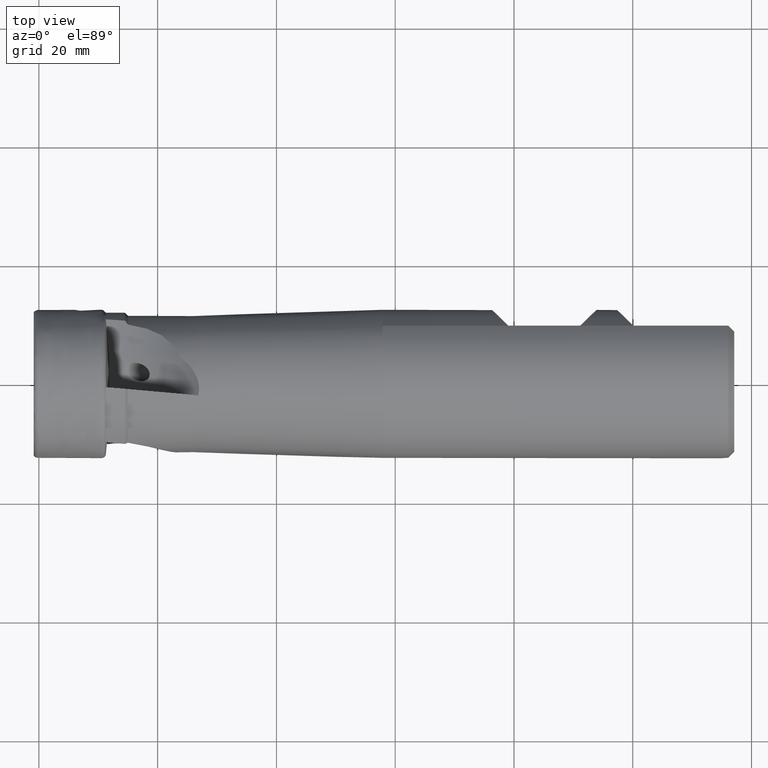
[diagram: clean part render]
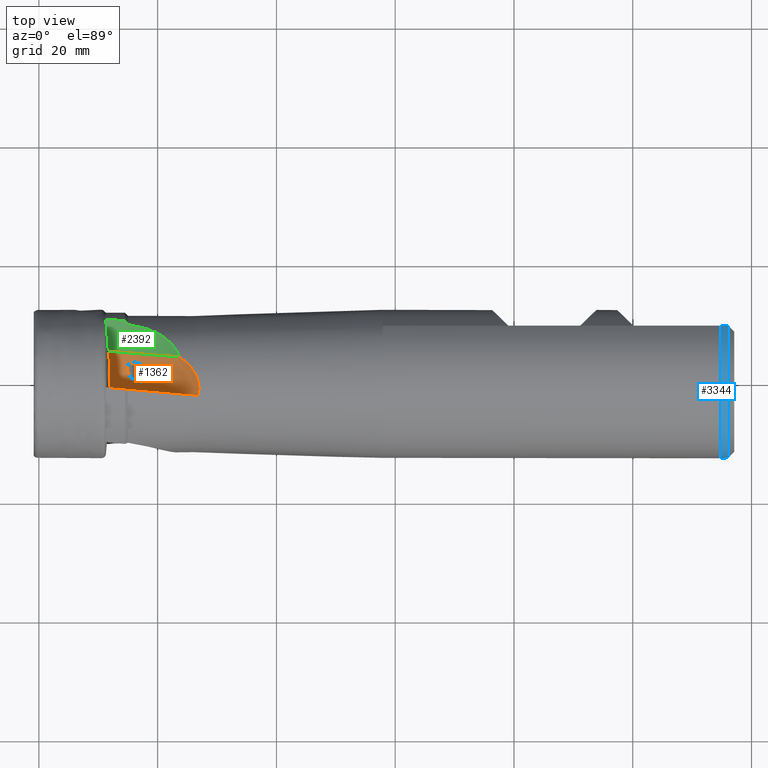
[diagram: same view with three faces highlighted in distinct colors, each labeled with its STEP entity id]
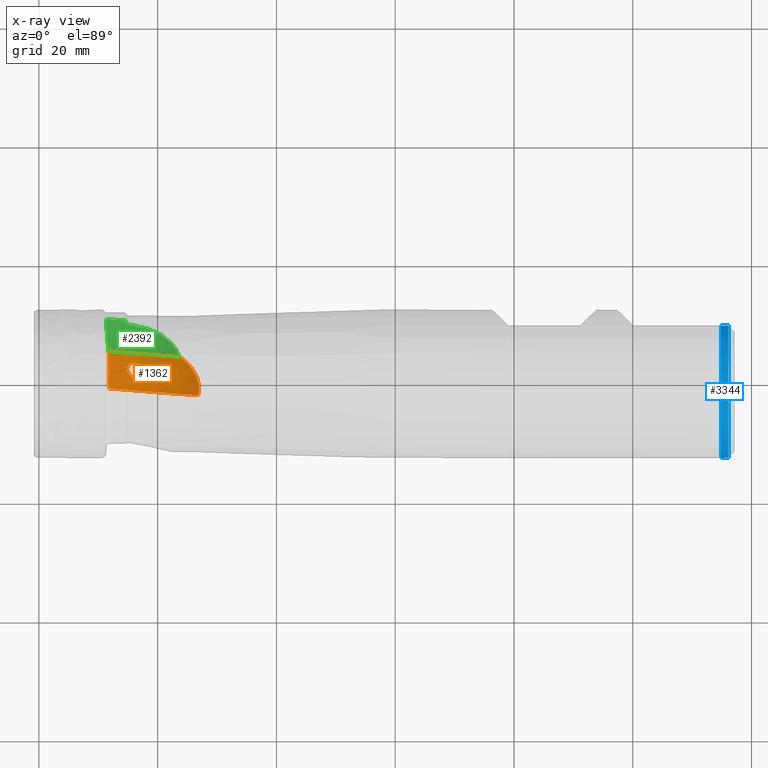
[diagram: x-ray of the same camera — body ghosted, the three highlighted faces saturated]
A machine part, top view with three faces highlighted in distinct colors.
The next image is the same camera in x-ray (body ghosted, the three faces saturated) — at least one of them is partly hidden behind the body in this view.
Their STEP definitions:

[orange] entity #1362 — the highlighted toroidal blend (fillet) surface has major radius 13.8 mm and minor (blend) radius 10 mm.
#21 = B_SPLINE_CURVE_WITH_KNOTS ( 'NONE', 3,
 ( #3822, #531, #1857, #4170, #2171, #225, #2507, #546, #2835, #866, #3168, #1197, #3502, #1532, #3838, #1869, #4182, #2189, #240, #2515, #558, #2852, #877, #3178, #1214, #3514, #1543, #3851, #1885, #4192, #2200, #256, #2529, #569, #2865, #893, #3192, #1224, #3527, #1556, #3862, #1896, #4209, #2208, #266, #2547, #586, #2876 ),
 .UNSPECIFIED., .T., .F.,
 ( 4, 2, 2, 2, 2, 2, 2, 2, 2, 2, 2, 2, 2, 2, 2, 2, 2, 2, 2, 2, 2, 2, 2, 4 ),
 ( 0.0000000000000000000, 0.0003532979001865562900, 0.0007065958003731125900, 0.001413191600746225800, 0.001766489500932782700, 0.002119787401119339700, 0.002826383201492457300, 0.003532979001865574900, 0.004239574802238692400, 0.004946170602611810900, 0.005299468502798374000, 0.005652766402984936300, 0.006006064303171500300, 0.006359362203358063400, 0.006712660103544628200, 0.007065958003731189600, 0.007419255903917752700, 0.007772553804104315000, 0.008479149604477440400, 0.009185745404850566600, 0.009892341205223691100, 0.01024563910541025300, 0.01059893700559681600, 0.01130553280596994000 ),
 .UNSPECIFIED. ) ;
#28 = CARTESIAN_POINT ( 'NONE',  ( 11.82924765536060000, 4.523120304491492000, 4.661295391707221300 ) ) ;
#41 = ORIENTED_EDGE ( 'NONE', *, *, #2557, .F. ) ;
#110 = CARTESIAN_POINT ( 'NONE',  ( 26.03133763206778900, 2.016279198989966200, 11.32236347895680200 ) ) ;
#148 = ORIENTED_EDGE ( 'NONE', *, *, #922, .F. ) ;
#150 = CARTESIAN_POINT ( 'NONE',  ( 24.53556153810972200, 3.725401575837079100, 10.88144590765194200 ) ) ;
#225 = CARTESIAN_POINT ( 'NONE',  ( 14.87427449894969900, 2.160588012613263100, 4.263736590284940700 ) ) ;
#228 = CARTESIAN_POINT ( 'NONE',  ( 26.22889793334643500, 1.715927084992845600, 11.38214155241293600 ) ) ;
#240 = CARTESIAN_POINT ( 'NONE',  ( 17.78217312964309100, 0.4377879011183786200, 4.876161949182781000 ) ) ;
#256 = CARTESIAN_POINT ( 'NONE',  ( 18.38660059041991700, 2.299493224496201200, 5.645421597407618300 ) ) ;
#266 = CARTESIAN_POINT ( 'NONE',  ( 15.56752422735448200, 3.431486689703986000, 5.005312610016495100 ) ) ;
#309 = DIRECTION ( 'NONE',  ( 0.9961946980917455500, -0.08715574274765848500, 0.0000000000000000000 ) ) ;
#320 = CARTESIAN_POINT ( 'NONE',  ( 25.99999999998509600, 2.064150782802217400, 11.31323479584230000 ) ) ;
#348 = CARTESIAN_POINT ( 'NONE',  ( 11.84043659206503200, 3.547439054832927800, 4.122655532505699900 ) ) ;
#418 = CARTESIAN_POINT ( 'NONE',  ( 9.339066207848093300, 5.650643800664974000, 26.80000000000000400 ) ) ;
#531 = CARTESIAN_POINT ( 'NONE',  ( 14.92867913769609900, 2.919945102674158300, 4.565428856767600700 ) ) ;
#546 = CARTESIAN_POINT ( 'NONE',  ( 15.13006518463329200, 1.629809231511827800, 4.183821912959309900 ) ) ;
#558 = CARTESIAN_POINT ( 'NONE',  ( 18.17478893274217500, 0.6134766486015449400, 5.075756237137493800 ) ) ;
#569 = CARTESIAN_POINT ( 'NONE',  ( 18.16365400656960500, 2.575016313938568200, 5.652121409465172200 ) ) ;
#586 = CARTESIAN_POINT ( 'NONE',  ( 15.09727780971131100, 3.188759131120605200, 4.733415971428156500 ) ) ;
#651 = CARTESIAN_POINT ( 'NONE',  ( 25.99999999998509600, 2.064150782802217400, 11.31323479584230000 ) ) ;
#654 = CARTESIAN_POINT ( 'NONE',  ( 11.74053314913045300, 5.331210420225042800, 5.203079365959758300 ) ) ;
#667 = DIRECTION ( 'NONE',  ( -0.08715574274765848500, -0.9961946980917455500, -0.0000000000000000000 ) ) ;
#669 = CARTESIAN_POINT ( 'NONE',  ( 11.85673849686388500, 2.237713936012555700, 3.631950500097380600 ) ) ;
#716 = CARTESIAN_POINT ( 'NONE',  ( 23.67047079365448800, 4.396808367003469400, 10.62629174189410500 ) ) ;
#748 = EDGE_CURVE ( 'NONE', #2328, #1654, #1667, .T. ) ;
#771 = B_SPLINE_CURVE_WITH_KNOTS ( 'NONE', 3,
 ( #3467, #2138, #3149, #1183 ),
 .UNSPECIFIED., .F., .F.,
 ( 4, 4 ),
 ( 3.706163050300629600E-007, 5.831083184353483200E-005 ),
 .UNSPECIFIED. ) ;
#787 = CARTESIAN_POINT ( 'NONE',  ( 24.11135611908353500, 4.074778222339828600, 10.75549461350568100 ) ) ;
#839 = VERTEX_POINT ( 'NONE', #2276 ) ;
#866 = CARTESIAN_POINT ( 'NONE',  ( 15.34207165158435700, 1.347699963080670500, 4.176540905911792800 ) ) ;
#868 = CARTESIAN_POINT ( 'NONE',  ( 26.68401629255890800, 0.7411293195197136100, 11.50189015463468900 ) ) ;
#877 = CARTESIAN_POINT ( 'NONE',  ( 18.42213236462421800, 0.8201078520237876600, 5.226631836701229400 ) ) ;
#893 = CARTESIAN_POINT ( 'NONE',  ( 17.81582021679709300, 2.893281354739829100, 5.631317454378155700 ) ) ;
#922 = EDGE_CURVE ( 'NONE', #1654, #2282, #1911, .T. ) ;
#948 = VERTEX_POINT ( 'NONE', #110 ) ;
#987 = CARTESIAN_POINT ( 'NONE',  ( 11.85305515062325400, 1.431328774175382800, 3.420393967480538600 ) ) ;
#1170 = CARTESIAN_POINT ( 'NONE',  ( 24.74270176988464300, 3.540239142398695200, 10.94339150152294100 ) ) ;
#1183 = CARTESIAN_POINT ( 'NONE',  ( 26.03133763206778900, 2.016279198989966200, 11.32236347895680200 ) ) ;
#1192 = DIRECTION ( 'NONE',  ( 0.9961946980917454300, -0.08715574274765847100, 0.0000000000000000000 ) ) ;
#1197 = CARTESIAN_POINT ( 'NONE',  ( 15.67555698028658100, 1.014919161043154500, 4.205661065213463200 ) ) ;
#1199 = CARTESIAN_POINT ( 'NONE',  ( 26.93891274825394400, -0.3152119877750572100, 11.53003882657656500 ) ) ;
#1214 = CARTESIAN_POINT ( 'NONE',  ( 18.59503626299693100, 1.097421471124008900, 5.368440190432783900 ) ) ;
#1224 = CARTESIAN_POINT ( 'NONE',  ( 17.21187593570095900, 3.244630720454459100, 5.536465420429015800 ) ) ;
#1247 = ORIENTED_EDGE ( 'NONE', *, *, #3162, .T. ) ;
#1324 = CARTESIAN_POINT ( 'NONE',  ( 11.82408927831467700, 0.6078125657805665300, 3.273460958097250500 ) ) ;
#1336 = B_SPLINE_CURVE_WITH_KNOTS ( 'NONE', 3,
 ( #3934, #654, #1635, #3956, #1978, #28, #2292, #348, #2632, #669, #2955, #987, #3287, #1324, #3632, #1650, #3972, #1999 ),
 .UNSPECIFIED., .F., .F.,
 ( 4, 2, 2, 2, 2, 2, 2, 2, 4 ),
 ( 0.0000000000000000000, 0.0004175039403962976200, 0.0008350078807925952400, 0.001670015761585186800, 0.003340031523170370100, 0.004175039403962960500, 0.005010047284755551700, 0.005845055165548142100, 0.006680063046340732400 ),
 .UNSPECIFIED. ) ;
#1362 = ADVANCED_FACE ( 'NONE', ( #1418, #3154 ), #4062, .F. ) ;
#1418 = FACE_BOUND ( 'NONE', #2973, .T. ) ;
#1532 = CARTESIAN_POINT ( 'NONE',  ( 16.26466604591707100, 0.6429248171179805500, 4.331809067995156900 ) ) ;
#1535 = CARTESIAN_POINT ( 'NONE',  ( 26.95550980234951100, -1.400111561184544900, 11.44995595290762400 ) ) ;
#1539 = EDGE_CURVE ( 'NONE', #3680, #839, #2086, .T. ) ;
#1543 = CARTESIAN_POINT ( 'NONE',  ( 18.66664165479616600, 1.424734704574025700, 5.487362233321836600 ) ) ;
#1556 = CARTESIAN_POINT ( 'NONE',  ( 16.55592843947475500, 3.455466428108180800, 5.377282660565577500 ) ) ;
#1605 = AXIS2_PLACEMENT_3D ( 'NONE', #418, #667, #1192 ) ;
#1635 = CARTESIAN_POINT ( 'NONE',  ( 11.76484150641106100, 5.218156958260240500, 5.122750800287237300 ) ) ;
#1650 = CARTESIAN_POINT ( 'NONE',  ( 11.80365453807018400, -0.2295843676476766200, 3.197449378165965900 ) ) ;
#1654 = VERTEX_POINT ( 'NONE', #2159 ) ;
#1667 = CIRCLE ( 'NONE', #1605, 21.64601809837321500 ) ;
#1771 = DIRECTION ( 'NONE',  ( -0.08715574274765848500, -0.9961946980917455500, -0.0000000000000000000 ) ) ;
#1857 = CARTESIAN_POINT ( 'NONE',  ( 14.88990898774564900, 2.821842620666055600, 4.513044283360343000 ) ) ;
#1869 = CARTESIAN_POINT ( 'NONE',  ( 16.90871465407975900, 0.4298604480666958200, 4.529183595739447700 ) ) ;
#1873 = CARTESIAN_POINT ( 'NONE',  ( 26.81784455521648500, -2.102234149780903400, 11.33180065524483000 ) ) ;
#1885 = CARTESIAN_POINT ( 'NONE',  ( 18.63143452672155900, 1.768629695307095900, 5.574011592856300500 ) ) ;
#1896 = CARTESIAN_POINT ( 'NONE',  ( 15.99782842665548400, 3.497839579307596500, 5.190060806297695200 ) ) ;
#1911 = B_SPLINE_CURVE_WITH_KNOTS ( 'NONE', 3,
 ( #716, #2359, #787, #150, #1170, #3633, #3782, #651 ),
 .UNSPECIFIED., .F., .F.,
 ( 4, 2, 2, 4 ),
 ( 0.002604637633750802200, 0.003444825465903872700, 0.004285013298056944400, 0.005965388962363087100 ),
 .UNSPECIFIED. ) ;
#1978 = CARTESIAN_POINT ( 'NONE',  ( 11.80973215259393100, 4.873945453693418800, 4.887619016210456900 ) ) ;
#1999 = CARTESIAN_POINT ( 'NONE',  ( 11.81839032143651000, -0.7899519452492265200, 3.193821182209712000 ) ) ;
#2009 = ORIENTED_EDGE ( 'NONE', *, *, #748, .F. ) ;
#2086 = CIRCLE ( 'NONE', #2258, 23.80000000000000400 ) ;
#2138 = CARTESIAN_POINT ( 'NONE',  ( 26.01042221813241900, 2.048154931560337100, 11.31615331114376500 ) ) ;
#2159 = CARTESIAN_POINT ( 'NONE',  ( 23.67047079365448800, 4.396808367003469400, 10.62629174189410500 ) ) ;
#2171 = CARTESIAN_POINT ( 'NONE',  ( 14.84145875832074200, 2.497803185128664600, 4.373254824388189900 ) ) ;
#2186 = ORIENTED_EDGE ( 'NONE', *, *, #4200, .F. ) ;
#2188 = ORIENTED_EDGE ( 'NONE', *, *, #2574, .F. ) ;
#2189 = CARTESIAN_POINT ( 'NONE',  ( 17.56348018911183200, 0.4009762279496014700, 4.780489199595661100 ) ) ;
#2200 = CARTESIAN_POINT ( 'NONE',  ( 18.50708616646279500, 2.096552555871654000, 5.626705786916199200 ) ) ;
#2208 = CARTESIAN_POINT ( 'NONE',  ( 15.67354207320235600, 3.458398681665263200, 5.055189394702909000 ) ) ;
#2252 = DIRECTION ( 'NONE',  ( -0.08715574274765848500, -0.9961946980917455500, -0.0000000000000000000 ) ) ;
#2258 = AXIS2_PLACEMENT_3D ( 'NONE', #4248, #2252, #309 ) ;
#2276 = CARTESIAN_POINT ( 'NONE',  ( 26.81784455521648500, -2.102234149780903400, 11.33180065524483000 ) ) ;
#2282 = VERTEX_POINT ( 'NONE', #320 ) ;
#2292 = CARTESIAN_POINT ( 'NONE',  ( 11.82944757292716000, 4.283713732638729800, 4.518614416670155600 ) ) ;
#2328 = VERTEX_POINT ( 'NONE', #2657 ) ;
#2359 = CARTESIAN_POINT ( 'NONE',  ( 23.89343761720274300, 4.239863521270923900, 10.69123033266845400 ) ) ;
#2507 = CARTESIAN_POINT ( 'NONE',  ( 14.95649468799112500, 1.936084620224347100, 4.217791206986078100 ) ) ;
#2510 = CARTESIAN_POINT ( 'NONE',  ( 26.03133763206778900, 2.016279198989966200, 11.32236347895680200 ) ) ;
#2515 = CARTESIAN_POINT ( 'NONE',  ( 18.07956437957215500, 0.5605454796197267800, 5.024714213853777700 ) ) ;
#2529 = CARTESIAN_POINT ( 'NONE',  ( 18.31617640109443500, 2.396061923000422300, 5.650194736587536700 ) ) ;
#2547 = CARTESIAN_POINT ( 'NONE',  ( 15.27127009918959800, 3.315805981110662600, 4.849398298737718900 ) ) ;
#2557 = EDGE_CURVE ( 'NONE', #2282, #948, #771, .T. ) ;
#2574 = EDGE_CURVE ( 'NONE', #3096, #3096, #21, .T. ) ;
#2632 = CARTESIAN_POINT ( 'NONE',  ( 11.84756740148387500, 3.029494043577080300, 3.898307065138464400 ) ) ;
#2657 = CARTESIAN_POINT ( 'NONE',  ( 11.71453628735177200, 5.442817098163375900, 5.285724518863978500 ) ) ;
#2684 = B_SPLINE_CURVE_WITH_KNOTS ( 'NONE', 3,
 ( #2510, #228, #2839, #868, #3173, #1199, #3505, #1535, #3844, #1873 ),
 .UNSPECIFIED., .F., .F.,
 ( 4, 2, 2, 2, 4 ),
 ( 3.652314020040032400E-007, 0.001082741655488306600, 0.002165118079574609200, 0.003247494503660912100, 0.004329870927747213700 ),
 .UNSPECIFIED. ) ;
#2757 = CARTESIAN_POINT ( 'NONE',  ( 8.798700602812610700, -0.5257633275038486900, 26.80000000000000400 ) ) ;
#2835 = CARTESIAN_POINT ( 'NONE',  ( 15.19604978116876700, 1.532826102570659800, 4.178167355467306400 ) ) ;
#2839 = CARTESIAN_POINT ( 'NONE',  ( 26.40067571412452500, 1.401815319146835400, 11.43123124368323200 ) ) ;
#2852 = CARTESIAN_POINT ( 'NONE',  ( 18.34494501994014800, 0.7423029213229314100, 5.176023271775505000 ) ) ;
#2865 = CARTESIAN_POINT ( 'NONE',  ( 18.08089015179712100, 2.658469088708463400, 5.649360761308385800 ) ) ;
#2876 = CARTESIAN_POINT ( 'NONE',  ( 14.98487869503450300, 3.009549778822973000, 4.621424561654451100 ) ) ;
#2955 = CARTESIAN_POINT ( 'NONE',  ( 11.85879941382088300, 1.970789113716817900, 3.554358670302576200 ) ) ;
#2973 = EDGE_LOOP ( 'NONE', ( #2188 ) ) ;
#3096 = VERTEX_POINT ( 'NONE', #3662 ) ;
#3149 = CARTESIAN_POINT ( 'NONE',  ( 26.02086790984493100, 2.032196380641569700, 11.31919553570073100 ) ) ;
#3154 = FACE_OUTER_BOUND ( 'NONE', #3329, .T. ) ;
#3162 = EDGE_CURVE ( 'NONE', #2328, #3680, #1336, .T. ) ;
#3168 = CARTESIAN_POINT ( 'NONE',  ( 15.42255053323048800, 1.259357337229223500, 4.180693709485230300 ) ) ;
#3173 = CARTESIAN_POINT ( 'NONE',  ( 26.79581964166751000, 0.3906007775187372300, 11.52324425281843600 ) ) ;
#3178 = CARTESIAN_POINT ( 'NONE',  ( 18.54667033828948800, 0.9968307548708468200, 5.322411907226912900 ) ) ;
#3192 = CARTESIAN_POINT ( 'NONE',  ( 17.62056784026654900, 3.025856580993107900, 5.606598411004476600 ) ) ;
#3287 = CARTESIAN_POINT ( 'NONE',  ( 11.84497975711512800, 1.158804314932632600, 3.363989085335983300 ) ) ;
#3329 = EDGE_LOOP ( 'NONE', ( #2009, #1247, #3865, #2186, #41, #148 ) ) ;
#3467 = CARTESIAN_POINT ( 'NONE',  ( 25.99999999998509600, 2.064150782802217400, 11.31323479584230000 ) ) ;
#3502 = CARTESIAN_POINT ( 'NONE',  ( 15.86316583743814600, 0.8747750747819006400, 4.238888650028365600 ) ) ;
#3505 = CARTESIAN_POINT ( 'NONE',  ( 26.97216874718812100, -0.6731824621138929900, 11.51610495036164700 ) ) ;
#3514 = CARTESIAN_POINT ( 'NONE',  ( 18.65484116774274200, 1.311089985772663700, 5.450760878307656700 ) ) ;
#3527 = CARTESIAN_POINT ( 'NONE',  ( 16.99391466928562600, 3.332626467346961000, 5.490076386084855800 ) ) ;
#3632 = CARTESIAN_POINT ( 'NONE',  ( 11.81191817258921300, 0.3287002301178071900, 3.239444269241106100 ) ) ;
#3633 = CARTESIAN_POINT ( 'NONE',  ( 25.33506842495617300, 2.958285902526909300, 11.12038612112044700 ) ) ;
#3662 = CARTESIAN_POINT ( 'NONE',  ( 14.98487869503450500, 3.009549778822972600, 4.621424561654454700 ) ) ;
#3680 = VERTEX_POINT ( 'NONE', #4203 ) ;
#3782 = CARTESIAN_POINT ( 'NONE',  ( 25.69283398032547800, 2.535584203933977800, 11.22721963900794900 ) ) ;
#3822 = CARTESIAN_POINT ( 'NONE',  ( 14.98487869503450300, 3.009549778822973000, 4.621424561654451100 ) ) ;
#3838 = CARTESIAN_POINT ( 'NONE',  ( 16.47356171638916300, 0.5536565106190678400, 4.390198956363375900 ) ) ;
#3844 = CARTESIAN_POINT ( 'NONE',  ( 26.90567676715687300, -1.756010072248108700, 11.39883167102845000 ) ) ;
#3851 = CARTESIAN_POINT ( 'NONE',  ( 18.65480729089153700, 1.653859523557830400, 5.549039796069651600 ) ) ;
#3862 = CARTESIAN_POINT ( 'NONE',  ( 16.33262546080403900, 3.492169192133123700, 5.310370586297892700 ) ) ;
#3865 = ORIENTED_EDGE ( 'NONE', *, *, #1539, .T. ) ;
#3903 = AXIS2_PLACEMENT_3D ( 'NONE', #2757, #1771, #4093 ) ;
#3934 = CARTESIAN_POINT ( 'NONE',  ( 11.71453628735177200, 5.442817098163375900, 5.285724518863978500 ) ) ;
#3956 = CARTESIAN_POINT ( 'NONE',  ( 11.79945675326912800, 4.989524421436158300, 4.965022306204137000 ) ) ;
#3972 = CARTESIAN_POINT ( 'NONE',  ( 11.80870863783551300, -0.5094334413728830400, 3.189443282803892100 ) ) ;
#4062 = TOROIDAL_SURFACE ( 'NONE', #3903, 13.80000000000000200, 10.00000000000000200 ) ;
#4093 = DIRECTION ( 'NONE',  ( 0.9961946980917455500, -0.08715574274765848500, 0.0000000000000000000 ) ) ;
#4170 = CARTESIAN_POINT ( 'NONE',  ( 14.84577822160361600, 2.608903919257963300, 4.416043494214005000 ) ) ;
#4182 = CARTESIAN_POINT ( 'NONE',  ( 17.12846522474308500, 0.3974826768704524100, 4.607776440232902000 ) ) ;
#4192 = CARTESIAN_POINT ( 'NONE',  ( 18.55710373260086900, 1.990811883489334500, 5.612929927026246300 ) ) ;
#4200 = EDGE_CURVE ( 'NONE', #948, #839, #2684, .T. ) ;
#4203 = CARTESIAN_POINT ( 'NONE',  ( 11.81839032143651000, -0.7899519452492265200, 3.193821182209712000 ) ) ;
#4209 = CARTESIAN_POINT ( 'NONE',  ( 15.88817397253968300, 3.491341056414957800, 5.147274153167057200 ) ) ;
#4248 = CARTESIAN_POINT ( 'NONE',  ( 8.798700602812610700, -0.5257633275038469100, 26.80000000000000400 ) ) ;

[blue] entity #3344 — the highlighted conical surface has half-angle 4.574 deg.
#78 = ORIENTED_EDGE ( 'NONE', *, *, #1489, .T. ) ;
#181 = ORIENTED_EDGE ( 'NONE', *, *, #1344, .T. ) ;
#250 = CARTESIAN_POINT ( 'NONE',  ( 115.6833756513085400, 9.700000000000004600, 7.778138934283050300 ) ) ;
#272 = CARTESIAN_POINT ( 'NONE',  ( 114.8499999999999800, 9.699999999999994000, -7.884161337770820800 ) ) ;
#484 = VERTEX_POINT ( 'NONE', #549 ) ;
#490 = AXIS2_PLACEMENT_3D ( 'NONE', #593, #3572, #1259 ) ;
#549 = CARTESIAN_POINT ( 'NONE',  ( 116.0999999999999900, 9.700000000000004600, 7.724635913753276700 ) ) ;
#593 = CARTESIAN_POINT ( 'NONE',  ( 114.8499999999999800, 0.0000000000000000000, 0.0000000000000000000 ) ) ;
#634 = ORIENTED_EDGE ( 'NONE', *, *, #1131, .F. ) ;
#639 = CIRCLE ( 'NONE', #3970, 12.40000000000000000 ) ;
#736 = CARTESIAN_POINT ( 'NONE',  ( 116.0999999999999900, 9.700000000000004600, -7.724635913750230300 ) ) ;
#1055 = DIRECTION ( 'NONE',  ( 0.0000000000000000000, 0.0000000000000000000, 1.000000000000000000 ) ) ;
#1113 = DIRECTION ( 'NONE',  ( -1.000000000000000000, -0.0000000000000000000, -0.0000000000000000000 ) ) ;
#1131 = EDGE_CURVE ( 'NONE', #3006, #4005, #3567, .T. ) ;
#1220 = CARTESIAN_POINT ( 'NONE',  ( 114.8499999999999800, 9.699999999999994000, 7.884161337770820800 ) ) ;
#1259 = DIRECTION ( 'NONE',  ( 0.0000000000000000000, 0.0000000000000000000, 1.000000000000000000 ) ) ;
#1344 = EDGE_CURVE ( 'NONE', #3975, #484, #639, .T. ) ;
#1388 = CARTESIAN_POINT ( 'NONE',  ( 116.0999999999999900, 0.0000000000000000000, 0.0000000000000000000 ) ) ;
#1434 = EDGE_CURVE ( 'NONE', #484, #4005, #4040, .T. ) ;
#1450 = CONICAL_SURFACE ( 'NONE', #1453, 12.40000000000000000, 0.07982998571223745600 ) ;
#1453 = AXIS2_PLACEMENT_3D ( 'NONE', #1388, #3694, #1055 ) ;
#1489 = EDGE_CURVE ( 'NONE', #3006, #3975, #1720, .T. ) ;
#1720 = B_SPLINE_CURVE_WITH_KNOTS ( 'NONE', 3,
 ( #272, #4219, #1904, #2556 ),
 .UNSPECIFIED., .F., .F.,
 ( 4, 4 ),
 ( 0.02309770409454800800, 0.02435779603977665500 ),
 .UNSPECIFIED. ) ;
#1904 = CARTESIAN_POINT ( 'NONE',  ( 115.6833825353748000, 9.700000000000004600, -7.778138050229250300 ) ) ;
#2433 = FACE_OUTER_BOUND ( 'NONE', #3748, .T. ) ;
#2523 = CARTESIAN_POINT ( 'NONE',  ( 116.0999999999999900, 9.700000000000004600, 7.724635913753276700 ) ) ;
#2556 = CARTESIAN_POINT ( 'NONE',  ( 116.0999999999999900, 9.700000000000004600, -7.724635913750230300 ) ) ;
#3006 = VERTEX_POINT ( 'NONE', #3550 ) ;
#3014 = ORIENTED_EDGE ( 'NONE', *, *, #1434, .T. ) ;
#3050 = CARTESIAN_POINT ( 'NONE',  ( 114.8499999999999800, 9.699999999999994000, 7.884161337770820800 ) ) ;
#3082 = CARTESIAN_POINT ( 'NONE',  ( 116.0999999999999900, 0.0000000000000000000, 0.0000000000000000000 ) ) ;
#3186 = CARTESIAN_POINT ( 'NONE',  ( 115.2667078385156900, 9.700000000000004600, 7.831307543858778300 ) ) ;
#3344 = ADVANCED_FACE ( 'NONE', ( #2433 ), #1450, .T. ) ;
#3413 = DIRECTION ( 'NONE',  ( 0.0000000000000000000, 0.0000000000000000000, 1.000000000000000000 ) ) ;
#3550 = CARTESIAN_POINT ( 'NONE',  ( 114.8499999999999800, 9.699999999999994000, -7.884161337770820800 ) ) ;
#3567 = CIRCLE ( 'NONE', #490, 12.50000000000000000 ) ;
#3572 = DIRECTION ( 'NONE',  ( -1.000000000000000000, -0.0000000000000000000, -0.0000000000000000000 ) ) ;
#3694 = DIRECTION ( 'NONE',  ( -1.000000000000000000, -0.0000000000000000000, -0.0000000000000000000 ) ) ;
#3748 = EDGE_LOOP ( 'NONE', ( #634, #78, #181, #3014 ) ) ;
#3970 = AXIS2_PLACEMENT_3D ( 'NONE', #3082, #1113, #3413 ) ;
#3975 = VERTEX_POINT ( 'NONE', #736 ) ;
#4005 = VERTEX_POINT ( 'NONE', #3050 ) ;
#4040 = B_SPLINE_CURVE_WITH_KNOTS ( 'NONE', 3,
 ( #2523, #250, #3186, #1220 ),
 .UNSPECIFIED., .F., .F.,
 ( 4, 4 ),
 ( 0.02194251888729409300, 0.02320234446291390100 ),
 .UNSPECIFIED. ) ;
#4219 = CARTESIAN_POINT ( 'NONE',  ( 115.2667140825173200, 9.700000000000004600, -7.831306751891013100 ) ) ;

[green] entity #2392 — the highlighted cylindrical surface (partial cylindrical patch) has radius 21.646 mm, axis along (-0.0872, -0.9962, -0).
#10 = CARTESIAN_POINT ( 'NONE',  ( 14.66900051898061500, 10.36013524217035100, 5.714822162643106800 ) ) ;
#56 = CARTESIAN_POINT ( 'NONE',  ( 14.50000000000000000, 10.57430104848623000, 5.673108260555495400 ) ) ;
#180 = CARTESIAN_POINT ( 'NONE',  ( 11.27743738042223000, 10.76083326444115900, 5.205010813868082000 ) ) ;
#183 = CARTESIAN_POINT ( 'NONE',  ( 19.45778878190488800, 8.721998350878280300, 7.499913130660811300 ) ) ;
#189 = CARTESIAN_POINT ( 'NONE',  ( 11.57966482397820900, 6.559175013724345000, 5.261279527502308500 ) ) ;
#412 = CARTESIAN_POINT ( 'NONE',  ( 8.798700602812610700, -0.5257633275038496900, 26.80000000000000400 ) ) ;
#418 = CARTESIAN_POINT ( 'NONE',  ( 9.339066207848093300, 5.650643800664974000, 26.80000000000000400 ) ) ;
#497 = CARTESIAN_POINT ( 'NONE',  ( 20.62989790905163900, 8.097177953090863400, 8.172109038464006000 ) ) ;
#508 = CARTESIAN_POINT ( 'NONE',  ( 11.65238429149798800, 5.888665395922469500, 5.274744717018180900 ) ) ;
#515 = B_SPLINE_CURVE_WITH_KNOTS ( 'NONE', 3,
 ( #3445, #1136, #1806, #4120, #2130, #183, #2461, #497, #2795, #820, #3120, #1149, #3460, #1483, #3795, #1816 ),
 .UNSPECIFIED., .F., .F.,
 ( 4, 2, 2, 2, 2, 2, 2, 4 ),
 ( 4.249187360970369500E-018, 0.002951610925240484800, 0.004427416387860723600, 0.005903221850480963600, 0.007379027313101201900, 0.008854832775721440200, 0.01033063823834168300, 0.01180644370096192200 ),
 .UNSPECIFIED. ) ;
#667 = DIRECTION ( 'NONE',  ( -0.08715574274765848500, -0.9961946980917455500, -0.0000000000000000000 ) ) ;
#748 = EDGE_CURVE ( 'NONE', #2328, #1654, #1667, .T. ) ;
#794 = FACE_OUTER_BOUND ( 'NONE', #2389, .T. ) ;
#816 = CARTESIAN_POINT ( 'NONE',  ( 11.30711907182069400, 10.59652483618448700, 5.208082635688415800 ) ) ;
#820 = CARTESIAN_POINT ( 'NONE',  ( 21.67662997709301100, 7.319610366240269200, 8.877012003510811800 ) ) ;
#827 = CARTESIAN_POINT ( 'NONE',  ( 11.71453628735177200, 5.442817098163375900, 5.285724518863978500 ) ) ;
#1002 = CARTESIAN_POINT ( 'NONE',  ( 11.25953682610515100, 10.81312405739319600, 5.203493837742532200 ) ) ;
#1136 = CARTESIAN_POINT ( 'NONE',  ( 15.95535646858684900, 9.786261492289449700, 6.046284532953540000 ) ) ;
#1144 = CARTESIAN_POINT ( 'NONE',  ( 11.32088577948336000, 10.37177077071780900, 5.210464236669095900 ) ) ;
#1149 = CARTESIAN_POINT ( 'NONE',  ( 22.58180431616453300, 6.364892522252633400, 9.586433342196533800 ) ) ;
#1182 = EDGE_CURVE ( 'NONE', #2114, #1204, #2348, .T. ) ;
#1192 = DIRECTION ( 'NONE',  ( 0.9961946980917454300, -0.08715574274765847100, 0.0000000000000000000 ) ) ;
#1204 = VERTEX_POINT ( 'NONE', #56 ) ;
#1298 = CARTESIAN_POINT ( 'NONE',  ( 15.00000000000021300, 9.927651111197846500, 5.804458925199426700 ) ) ;
#1333 = CARTESIAN_POINT ( 'NONE',  ( 12.35176691538029600, 10.77754740696385500, 5.277423921381465100 ) ) ;
#1406 = EDGE_CURVE ( 'NONE', #3613, #1654, #515, .T. ) ;
#1456 = CYLINDRICAL_SURFACE ( 'NONE', #3908, 21.64601809837321500 ) ;
#1477 = CARTESIAN_POINT ( 'NONE',  ( 11.36804094184650500, 9.699059090769045700, 5.218347266692010300 ) ) ;
#1483 = CARTESIAN_POINT ( 'NONE',  ( 23.30358564945827000, 5.247786519793969300, 10.24220362783495400 ) ) ;
#1524 = CARTESIAN_POINT ( 'NONE',  ( 11.25953682610515100, 10.81312405739319600, 5.203493837742532200 ) ) ;
#1605 = AXIS2_PLACEMENT_3D ( 'NONE', #418, #667, #1192 ) ;
#1654 = VERTEX_POINT ( 'NONE', #2159 ) ;
#1663 = CARTESIAN_POINT ( 'NONE',  ( 14.50000000000000000, 10.57430104848623000, 5.673108260555495400 ) ) ;
#1667 = CIRCLE ( 'NONE', #1605, 21.64601809837321500 ) ;
#1745 = ORIENTED_EDGE ( 'NONE', *, *, #748, .T. ) ;
#1806 = CARTESIAN_POINT ( 'NONE',  ( 16.87436844274698400, 9.597831014593369400, 6.350470467666067300 ) ) ;
#1813 = CARTESIAN_POINT ( 'NONE',  ( 11.44497040287864700, 8.577763088900100600, 5.232454201667089900 ) ) ;
#1816 = CARTESIAN_POINT ( 'NONE',  ( 23.67047079365448800, 4.396808367003469400, 10.62629174189410500 ) ) ;
#1819 = ORIENTED_EDGE ( 'NONE', *, *, #3830, .F. ) ;
#1954 = CARTESIAN_POINT ( 'NONE',  ( 14.50000000000000000, 10.57430104848623000, 5.673108260555495400 ) ) ;
#2040 = ORIENTED_EDGE ( 'NONE', *, *, #1182, .F. ) ;
#2114 = VERTEX_POINT ( 'NONE', #1524 ) ;
#2130 = CARTESIAN_POINT ( 'NONE',  ( 18.62167682697725700, 9.062195645645214600, 7.085094373417396300 ) ) ;
#2139 = CARTESIAN_POINT ( 'NONE',  ( 11.53002118242685200, 7.231630664076297100, 5.250660618659281900 ) ) ;
#2159 = CARTESIAN_POINT ( 'NONE',  ( 23.67047079365448800, 4.396808367003469400, 10.62629174189410500 ) ) ;
#2328 = VERTEX_POINT ( 'NONE', #2657 ) ;
#2348 = B_SPLINE_CURVE_WITH_KNOTS ( 'NONE', 3,
 ( #1002, #1333, #3643, #1663 ),
 .UNSPECIFIED., .F., .F.,
 ( 4, 4 ),
 ( 0.001256063672553527400, 0.004537304999680655800 ),
 .UNSPECIFIED. ) ;
#2365 = DIRECTION ( 'NONE',  ( 0.9961946980917454300, -0.08715574274765847100, 0.0000000000000000000 ) ) ;
#2389 = EDGE_LOOP ( 'NONE', ( #2040, #2970, #1745, #3755, #1819 ) ) ;
#2392 = ADVANCED_FACE ( 'NONE', ( #794 ), #1456, .F. ) ;
#2457 = CARTESIAN_POINT ( 'NONE',  ( 11.25953682610515100, 10.81312405739319600, 5.203493837742532200 ) ) ;
#2461 = CARTESIAN_POINT ( 'NONE',  ( 19.86359982629883100, 8.529038640759690500, 7.720308077077877600 ) ) ;
#2469 = CARTESIAN_POINT ( 'NONE',  ( 11.59947101757783500, 6.335297882223046400, 5.265219295648429400 ) ) ;
#2502 = CARTESIAN_POINT ( 'NONE',  ( 15.00000000000021300, 9.927651111197846500, 5.804458925199426700 ) ) ;
#2552 = B_SPLINE_CURVE_WITH_KNOTS ( 'NONE', 3,
 ( #1954, #10, #3271, #1298 ),
 .UNSPECIFIED., .F., .F.,
 ( 4, 4 ),
 ( 3.265828513450481000E-007, 0.0008282209834228335700 ),
 .UNSPECIFIED. ) ;
#2657 = CARTESIAN_POINT ( 'NONE',  ( 11.71453628735177200, 5.442817098163375900, 5.285724518863978500 ) ) ;
#2767 = EDGE_CURVE ( 'NONE', #2114, #2328, #3962, .T. ) ;
#2790 = CARTESIAN_POINT ( 'NONE',  ( 11.29052417923585400, 10.70705260617131500, 5.206245131636649100 ) ) ;
#2795 = CARTESIAN_POINT ( 'NONE',  ( 20.99301347740156800, 7.857335576906439000, 8.404779334160258100 ) ) ;
#2802 = CARTESIAN_POINT ( 'NONE',  ( 11.68502591588871400, 5.665871408299889100, 5.280311478285313800 ) ) ;
#2970 = ORIENTED_EDGE ( 'NONE', *, *, #2767, .T. ) ;
#3031 = DIRECTION ( 'NONE',  ( -0.08715574274765848500, -0.9961946980917455500, -0.0000000000000000000 ) ) ;
#3117 = CARTESIAN_POINT ( 'NONE',  ( 11.30899069866167400, 10.53994205771049900, 5.208567284496416100 ) ) ;
#3120 = CARTESIAN_POINT ( 'NONE',  ( 21.99952129655958500, 7.018670362404020800, 9.118652717815075800 ) ) ;
#3271 = CARTESIAN_POINT ( 'NONE',  ( 14.83576158149949500, 10.14467185268322400, 5.758672677760621600 ) ) ;
#3445 = CARTESIAN_POINT ( 'NONE',  ( 15.00000000000021300, 9.927651111197846500, 5.804458925199426700 ) ) ;
#3455 = CARTESIAN_POINT ( 'NONE',  ( 11.34459464083095300, 10.03542316093175100, 5.214317786990240400 ) ) ;
#3460 = CARTESIAN_POINT ( 'NONE',  ( 22.84256878414822000, 6.011942666241665700, 9.813182148986625100 ) ) ;
#3613 = VERTEX_POINT ( 'NONE', #2502 ) ;
#3643 = CARTESIAN_POINT ( 'NONE',  ( 13.43227974448403500, 10.70292136259693400, 5.433368445996662500 ) ) ;
#3755 = ORIENTED_EDGE ( 'NONE', *, *, #1406, .F. ) ;
#3788 = CARTESIAN_POINT ( 'NONE',  ( 11.41452327440359200, 9.026304637852629000, 5.226630993645207100 ) ) ;
#3795 = CARTESIAN_POINT ( 'NONE',  ( 23.50464770878488000, 4.833796598761947100, 10.44548045227911200 ) ) ;
#3830 = EDGE_CURVE ( 'NONE', #1204, #3613, #2552, .T. ) ;
#3908 = AXIS2_PLACEMENT_3D ( 'NONE', #412, #3031, #2365 ) ;
#3962 = B_SPLINE_CURVE_WITH_KNOTS ( 'NONE', 3,
 ( #2457, #180, #2790, #816, #3117, #1144, #3455, #1477, #3788, #1813, #4130, #2139, #189, #2469, #508, #2802, #827 ),
 .UNSPECIFIED., .F., .F.,
 ( 4, 2, 2, 1, 2, 2, 2, 2, 4 ),
 ( 0.0001408006803522557400, 0.0003065922052561005900, 0.0004723837301599453600, 0.0008039667799676302300, 0.001467132879582999600, 0.002793465078813743500, 0.004119797278044486400, 0.004782963377659858600, 0.005446129477275230700 ),
 .UNSPECIFIED. ) ;
#4120 = CARTESIAN_POINT ( 'NONE',  ( 18.19245522893254500, 9.209486980615061200, 6.890904032870354400 ) ) ;
#4130 = CARTESIAN_POINT ( 'NONE',  ( 11.50434835498918100, 7.680562569125201300, 5.244630284594219200 ) ) ;